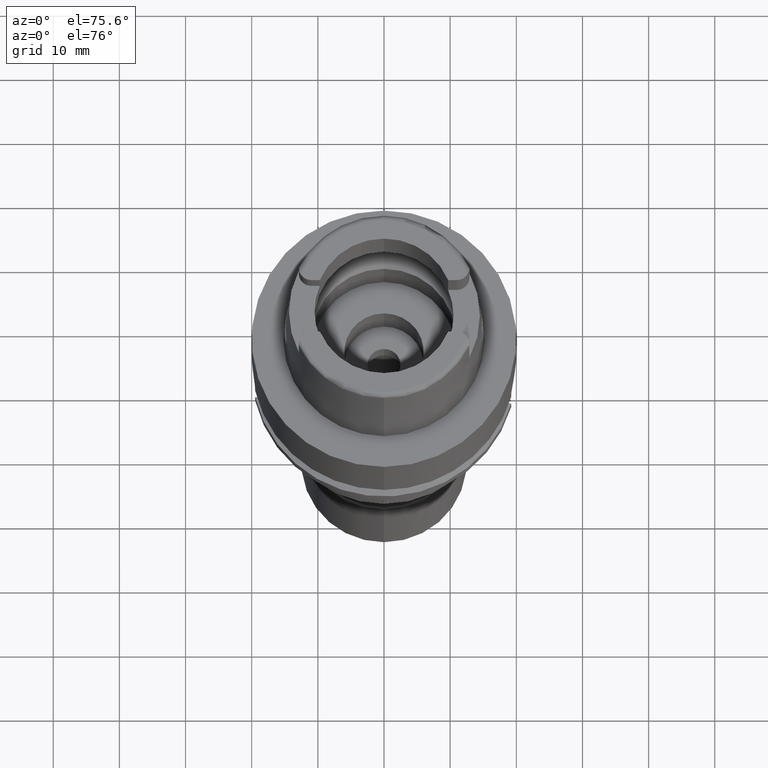
[diagram: clean part render]
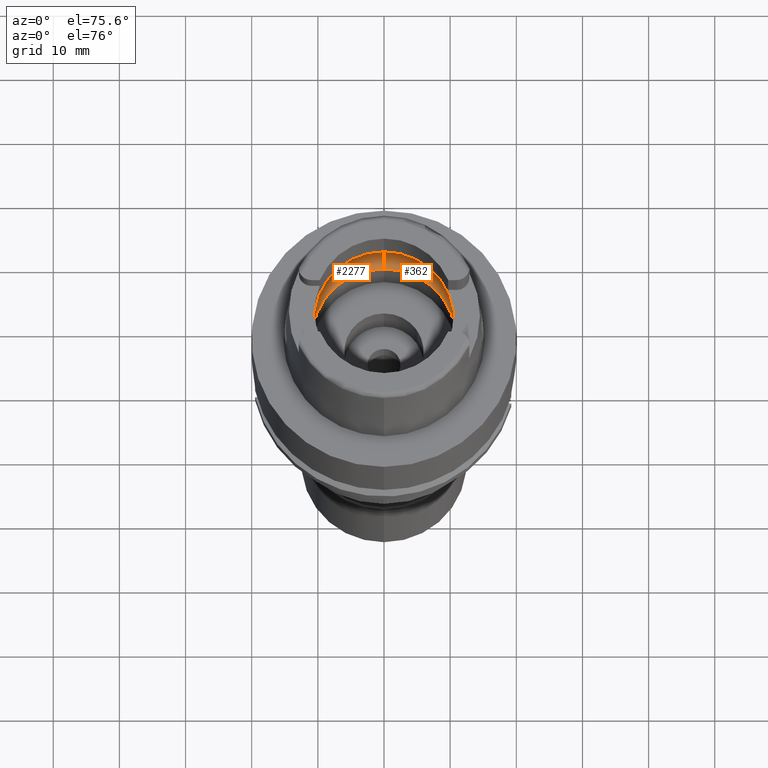
[diagram: same view with one multi-face feature highlighted, each face labeled with its STEP entity id]
A machine part, auxiliary view. The highlighted faces form ONE feature: a constant-radius fillet chain: 2 tangent blend faces with common blend radius 5 mm. The faces share edges in the B-rep.
Their STEP definitions:
[1] entity #2277 (Torus):
#80 = CIRCLE ( 'NONE', #2034, 5.000000000000000888 ) ;
#223 = CARTESIAN_POINT ( 'NONE',  ( -12.70998420979999999, -1.009356917307999923, 3.933312163512999504 ) ) ;
#230 = B_SPLINE_CURVE_WITH_KNOTS ( 'NONE', 3,
 ( #223, #1106, #1026, #2700, #1866, #1080 ),
 .UNSPECIFIED., .F., .F.,
 ( 4, 1, 1, 4 ),
 ( 0.0000000000000000000, 0.3333333333333000081, 0.6666666666667000474, 1.000000000000000000 ),
 .UNSPECIFIED. ) ;
#357 = FACE_OUTER_BOUND ( 'NONE', #923, .T. ) ;
#485 = CARTESIAN_POINT ( 'NONE',  ( 0.0000000000000000000, -7.750000000000000000, 3.933312163512999504 ) ) ;
#581 = ORIENTED_EDGE ( 'NONE', *, *, #1940, .T. ) ;
#597 = VERTEX_POINT ( 'NONE', #4665 ) ;
#615 = CIRCLE ( 'NONE', #2459, 12.75000000000000533 ) ;
#625 = ORIENTED_EDGE ( 'NONE', *, *, #3790, .F. ) ;
#652 = CARTESIAN_POINT ( 'NONE',  ( 0.0000000000000000000, 7.750000000000000000, 3.933312163512999504 ) ) ;
#669 = CARTESIAN_POINT ( 'NONE',  ( -12.73125751627000035, 0.6899582059268000167, 3.796706360378999889 ) ) ;
#802 = CIRCLE ( 'NONE', #4414, 12.75000000000000000 ) ;
#893 = CIRCLE ( 'NONE', #983, 5.000000000000000888 ) ;
#923 = EDGE_LOOP ( 'NONE', ( #4750, #972, #3204, #581, #3233, #625, #2678 ) ) ;
#972 = ORIENTED_EDGE ( 'NONE', *, *, #3335, .F. ) ;
#983 = AXIS2_PLACEMENT_3D ( 'NONE', #485, #3400, #1337 ) ;
#1026 = CARTESIAN_POINT ( 'NONE',  ( -12.73125747192000112, -0.6899593579563000345, 3.796706671708999892 ) ) ;
#1080 = CARTESIAN_POINT ( 'NONE',  ( -12.74455357708000136, 0.0000000000000000000, 3.700000000000000178 ) ) ;
#1106 = CARTESIAN_POINT ( 'NONE',  ( -12.71822604802000001, -0.9055743684054998743, 3.882625440641000125 ) ) ;
#1192 = VERTEX_POINT ( 'NONE', #1965 ) ;
#1260 = CARTESIAN_POINT ( 'NONE',  ( 0.0000000000000000000, 1.272815980657999902E-14, 3.933312163512999504 ) ) ;
#1333 = CARTESIAN_POINT ( 'NONE',  ( 0.0000000000000000000, 1.272815980657999902E-14, 3.933312163512999504 ) ) ;
#1337 = DIRECTION ( 'NONE',  ( 0.0000000000000000000, -0.6299999999999791322, -0.7765951326141738997 ) ) ;
#1439 = CARTESIAN_POINT ( 'NONE',  ( -12.70998420979999999, 1.009356917307999923, 3.933312163512999504 ) ) ;
#1469 = VERTEX_POINT ( 'NONE', #4760 ) ;
#1821 = B_SPLINE_CURVE_WITH_KNOTS ( 'NONE', 3,
 ( #4855, #4440, #5241, #669, #3190, #1439 ),
 .UNSPECIFIED., .F., .F.,
 ( 4, 1, 1, 4 ),
 ( 0.0000000000000000000, 0.3333333333333000081, 0.6666666666667000474, 1.000000000000000000 ),
 .UNSPECIFIED. ) ;
#1866 = CARTESIAN_POINT ( 'NONE',  ( -12.74455357708000136, -0.1164895712142999945, 3.700000000000000178 ) ) ;
#1868 = EDGE_CURVE ( 'NONE', #2104, #1469, #615, .T. ) ;
#1919 = VERTEX_POINT ( 'NONE', #3871 ) ;
#1940 = EDGE_CURVE ( 'NONE', #1192, #1469, #80, .T. ) ;
#1965 = CARTESIAN_POINT ( 'NONE',  ( 0.0000000000000000000, 10.90000000000000036, 0.05033650044222000297 ) ) ;
#2034 = AXIS2_PLACEMENT_3D ( 'NONE', #652, #4782, #3570 ) ;
#2104 = VERTEX_POINT ( 'NONE', #4578 ) ;
#2175 = DIRECTION ( 'NONE',  ( 0.0000000000000000000, 0.0000000000000000000, -1.000000000000000000 ) ) ;
#2198 = EDGE_CURVE ( 'NONE', #3791, #4431, #230, .T. ) ;
#2231 = AXIS2_PLACEMENT_3D ( 'NONE', #2861, #5345, #3673 ) ;
#2277 = ADVANCED_FACE ( 'NONE', ( #357 ), #3702, .F. ) ;
#2459 = AXIS2_PLACEMENT_3D ( 'NONE', #1333, #2175, #4667 ) ;
#2637 = DIRECTION ( 'NONE',  ( 0.0000000000000000000, 0.0000000000000000000, -1.000000000000000000 ) ) ;
#2678 = ORIENTED_EDGE ( 'NONE', *, *, #2198, .F. ) ;
#2700 = CARTESIAN_POINT ( 'NONE',  ( -12.74221292844000075, -0.3492178066839999873, 3.717717104612000334 ) ) ;
#2861 = CARTESIAN_POINT ( 'NONE',  ( 0.0000000000000000000, 1.272815980657999902E-14, 0.05033650044222000297 ) ) ;
#3007 = EDGE_CURVE ( 'NONE', #597, #3791, #802, .T. ) ;
#3190 = CARTESIAN_POINT ( 'NONE',  ( -12.71822608499000040, 0.9055739029613000257, 3.882625213320999968 ) ) ;
#3204 = ORIENTED_EDGE ( 'NONE', *, *, #4335, .F. ) ;
#3233 = ORIENTED_EDGE ( 'NONE', *, *, #1868, .F. ) ;
#3335 = EDGE_CURVE ( 'NONE', #1919, #597, #893, .T. ) ;
#3400 = DIRECTION ( 'NONE',  ( -1.000000000000000000, 0.0000000000000000000, 0.0000000000000000000 ) ) ;
#3527 = CARTESIAN_POINT ( 'NONE',  ( -12.70998420979999999, -1.009356917307999923, 3.933312163512999504 ) ) ;
#3570 = DIRECTION ( 'NONE',  ( 0.0000000000000000000, 0.6299999999999791322, -0.7765951326141738997 ) ) ;
#3673 = DIRECTION ( 'NONE',  ( 0.0000000000000000000, 1.000000000000000000, 0.0000000000000000000 ) ) ;
#3702 = TOROIDAL_SURFACE ( 'NONE', #3878, 7.750000000000000000, 5.000000000000000000 ) ;
#3753 = DIRECTION ( 'NONE',  ( 0.0000000000000000000, -1.000000000000000000, 0.0000000000000000000 ) ) ;
#3790 = EDGE_CURVE ( 'NONE', #4431, #2104, #1821, .T. ) ;
#3791 = VERTEX_POINT ( 'NONE', #3527 ) ;
#3871 = CARTESIAN_POINT ( 'NONE',  ( 0.0000000000000000000, -10.90000000000000036, 0.05033650044222000297 ) ) ;
#3878 = AXIS2_PLACEMENT_3D ( 'NONE', #4525, #5373, #3753 ) ;
#4221 = CARTESIAN_POINT ( 'NONE',  ( -12.74455357708000136, 0.0000000000000000000, 3.700000000000000178 ) ) ;
#4335 = EDGE_CURVE ( 'NONE', #1192, #1919, #4774, .T. ) ;
#4414 = AXIS2_PLACEMENT_3D ( 'NONE', #1260, #2637, #4712 ) ;
#4431 = VERTEX_POINT ( 'NONE', #4221 ) ;
#4440 = CARTESIAN_POINT ( 'NONE',  ( -12.74455357708000136, 0.1164898789877999996, 3.700000000000000178 ) ) ;
#4525 = CARTESIAN_POINT ( 'NONE',  ( 0.0000000000000000000, 1.272815980657999902E-14, 3.933312163512999504 ) ) ;
#4578 = CARTESIAN_POINT ( 'NONE',  ( -12.70998420979999999, 1.009356917307999923, 3.933312163512999504 ) ) ;
#4665 = CARTESIAN_POINT ( 'NONE',  ( 0.0000000000000000000, -12.75000000000000000, 3.933312163512999504 ) ) ;
#4667 = DIRECTION ( 'NONE',  ( -0.9968615066513395462, 0.07916524841634305087, 0.0000000000000000000 ) ) ;
#4712 = DIRECTION ( 'NONE',  ( 0.0000000000000000000, -1.000000000000000000, 0.0000000000000000000 ) ) ;
#4750 = ORIENTED_EDGE ( 'NONE', *, *, #3007, .F. ) ;
#4760 = CARTESIAN_POINT ( 'NONE',  ( 0.0000000000000000000, 12.75000000000000000, 3.933312163512999504 ) ) ;
#4774 = CIRCLE ( 'NONE', #2231, 10.90000000000000036 ) ;
#4782 = DIRECTION ( 'NONE',  ( 1.000000000000000000, 0.0000000000000000000, 0.0000000000000000000 ) ) ;
#4855 = CARTESIAN_POINT ( 'NONE',  ( -12.74455357708000136, 0.0000000000000000000, 3.700000000000000178 ) ) ;
#5241 = CARTESIAN_POINT ( 'NONE',  ( -12.74221290559999886, 0.3492184865941000416, 3.717717267404999859 ) ) ;
#5345 = DIRECTION ( 'NONE',  ( 0.0000000000000000000, 0.0000000000000000000, 1.000000000000000000 ) ) ;
#5373 = DIRECTION ( 'NONE',  ( 0.0000000000000000000, 0.0000000000000000000, -1.000000000000000000 ) ) ;
[2] entity #362 (Torus):
#80 = CIRCLE ( 'NONE', #2034, 5.000000000000000888 ) ;
#127 = CARTESIAN_POINT ( 'NONE',  ( 12.70998420979999999, 1.009356917307000057, 3.933312163512999504 ) ) ;
#330 = VERTEX_POINT ( 'NONE', #127 ) ;
#354 = ORIENTED_EDGE ( 'NONE', *, *, #1339, .F. ) ;
#362 = ADVANCED_FACE ( 'NONE', ( #1127 ), #3275, .F. ) ;
#485 = CARTESIAN_POINT ( 'NONE',  ( 0.0000000000000000000, -7.750000000000000000, 3.933312163512999504 ) ) ;
#524 = ORIENTED_EDGE ( 'NONE', *, *, #1940, .F. ) ;
#538 = EDGE_CURVE ( 'NONE', #1469, #330, #1001, .T. ) ;
#563 = AXIS2_PLACEMENT_3D ( 'NONE', #2281, #2650, #566 ) ;
#566 = DIRECTION ( 'NONE',  ( 0.9968615066513395462, -0.07916524841634305087, 0.0000000000000000000 ) ) ;
#597 = VERTEX_POINT ( 'NONE', #4665 ) ;
#652 = CARTESIAN_POINT ( 'NONE',  ( 0.0000000000000000000, 7.750000000000000000, 3.933312163512999504 ) ) ;
#691 = EDGE_CURVE ( 'NONE', #4708, #597, #2927, .T. ) ;
#840 = ORIENTED_EDGE ( 'NONE', *, *, #538, .F. ) ;
#848 = CARTESIAN_POINT ( 'NONE',  ( 0.0000000000000000000, 1.272815980657999902E-14, 0.05033650044222000297 ) ) ;
#893 = CIRCLE ( 'NONE', #983, 5.000000000000000888 ) ;
#933 = CARTESIAN_POINT ( 'NONE',  ( 12.71822610548000121, 0.9055736448555999907, 3.882625087264000019 ) ) ;
#983 = AXIS2_PLACEMENT_3D ( 'NONE', #485, #3400, #1337 ) ;
#1001 = CIRCLE ( 'NONE', #1168, 12.75000000000000000 ) ;
#1016 = CARTESIAN_POINT ( 'NONE',  ( 12.71822602740000185, -0.9055746280688999894, 3.882625567459000226 ) ) ;
#1127 = FACE_OUTER_BOUND ( 'NONE', #3693, .T. ) ;
#1168 = AXIS2_PLACEMENT_3D ( 'NONE', #5330, #1641, #4995 ) ;
#1192 = VERTEX_POINT ( 'NONE', #1965 ) ;
#1337 = DIRECTION ( 'NONE',  ( 0.0000000000000000000, -0.6299999999999791322, -0.7765951326141738997 ) ) ;
#1339 = EDGE_CURVE ( 'NONE', #330, #3035, #4312, .T. ) ;
#1469 = VERTEX_POINT ( 'NONE', #4760 ) ;
#1473 = DIRECTION ( 'NONE',  ( 0.0000000000000000000, 0.0000000000000000000, -1.000000000000000000 ) ) ;
#1595 = CARTESIAN_POINT ( 'NONE',  ( 12.70998420979999999, -1.009356917307999923, 3.933312163512999504 ) ) ;
#1641 = DIRECTION ( 'NONE',  ( 0.0000000000000000000, 0.0000000000000000000, -1.000000000000000000 ) ) ;
#1862 = CARTESIAN_POINT ( 'NONE',  ( 0.0000000000000000000, 1.272815980657999902E-14, 3.933312163512999504 ) ) ;
#1888 = AXIS2_PLACEMENT_3D ( 'NONE', #848, #3376, #5063 ) ;
#1919 = VERTEX_POINT ( 'NONE', #3871 ) ;
#1940 = EDGE_CURVE ( 'NONE', #1192, #1469, #80, .T. ) ;
#1965 = CARTESIAN_POINT ( 'NONE',  ( 0.0000000000000000000, 10.90000000000000036, 0.05033650044222000297 ) ) ;
#2034 = AXIS2_PLACEMENT_3D ( 'NONE', #652, #4782, #3570 ) ;
#2060 = CIRCLE ( 'NONE', #1888, 10.90000000000000036 ) ;
#2281 = CARTESIAN_POINT ( 'NONE',  ( 0.0000000000000000000, 1.272815980657999902E-14, 3.933312163512999504 ) ) ;
#2289 = ORIENTED_EDGE ( 'NONE', *, *, #3335, .T. ) ;
#2551 = CARTESIAN_POINT ( 'NONE',  ( 12.74455357708000136, 0.1164895916260999947, 3.700000000000000178 ) ) ;
#2650 = DIRECTION ( 'NONE',  ( 0.0000000000000000000, 0.0000000000000000000, -1.000000000000000000 ) ) ;
#2751 = AXIS2_PLACEMENT_3D ( 'NONE', #1862, #1473, #2845 ) ;
#2768 = CARTESIAN_POINT ( 'NONE',  ( 12.74455357708000136, -0.1164898603219999829, 3.700000000000000178 ) ) ;
#2845 = DIRECTION ( 'NONE',  ( 0.0000000000000000000, -1.000000000000000000, 0.0000000000000000000 ) ) ;
#2927 = CIRCLE ( 'NONE', #563, 12.75000000000000533 ) ;
#3035 = VERTEX_POINT ( 'NONE', #3860 ) ;
#3045 = CARTESIAN_POINT ( 'NONE',  ( 12.74221291712999893, 0.3492178183419999971, 3.717717179960999818 ) ) ;
#3072 = CARTESIAN_POINT ( 'NONE',  ( 12.74455357708000136, 0.0000000000000000000, 3.700000000000000178 ) ) ;
#3179 = CARTESIAN_POINT ( 'NONE',  ( 12.73125744058999942, -0.6899600012526999615, 3.796706888550000158 ) ) ;
#3275 = TOROIDAL_SURFACE ( 'NONE', #2751, 7.750000000000000000, 5.000000000000000000 ) ;
#3335 = EDGE_CURVE ( 'NONE', #1919, #597, #893, .T. ) ;
#3376 = DIRECTION ( 'NONE',  ( 0.0000000000000000000, 0.0000000000000000000, 1.000000000000000000 ) ) ;
#3400 = DIRECTION ( 'NONE',  ( -1.000000000000000000, 0.0000000000000000000, 0.0000000000000000000 ) ) ;
#3463 = CARTESIAN_POINT ( 'NONE',  ( 12.70998420979999999, 1.009356917307000057, 3.933312163512999504 ) ) ;
#3570 = DIRECTION ( 'NONE',  ( 0.0000000000000000000, 0.6299999999999791322, -0.7765951326141738997 ) ) ;
#3690 = ORIENTED_EDGE ( 'NONE', *, *, #691, .F. ) ;
#3693 = EDGE_LOOP ( 'NONE', ( #354, #840, #524, #4644, #2289, #3690, #5438 ) ) ;
#3842 = B_SPLINE_CURVE_WITH_KNOTS ( 'NONE', 3,
 ( #3072, #2768, #4403, #3179, #1016, #4841 ),
 .UNSPECIFIED., .F., .F.,
 ( 4, 1, 1, 4 ),
 ( 0.0000000000000000000, 0.3333333333333000081, 0.6666666666667000474, 1.000000000000000000 ),
 .UNSPECIFIED. ) ;
#3855 = CARTESIAN_POINT ( 'NONE',  ( 12.73125754741000115, 0.6899575664910999606, 3.796706144840999997 ) ) ;
#3860 = CARTESIAN_POINT ( 'NONE',  ( 12.74455357708000136, 0.0000000000000000000, 3.700000000000000178 ) ) ;
#3871 = CARTESIAN_POINT ( 'NONE',  ( 0.0000000000000000000, -10.90000000000000036, 0.05033650044222000297 ) ) ;
#4312 = B_SPLINE_CURVE_WITH_KNOTS ( 'NONE', 3,
 ( #3463, #933, #3855, #3045, #2551, #4735 ),
 .UNSPECIFIED., .F., .F.,
 ( 4, 1, 1, 4 ),
 ( 0.0000000000000000000, 0.3333333333333000081, 0.6666666666667000474, 1.000000000000000000 ),
 .UNSPECIFIED. ) ;
#4403 = CARTESIAN_POINT ( 'NONE',  ( 12.74221291684999890, -0.3492184789958999724, 3.717717192588000152 ) ) ;
#4644 = ORIENTED_EDGE ( 'NONE', *, *, #4946, .F. ) ;
#4665 = CARTESIAN_POINT ( 'NONE',  ( 0.0000000000000000000, -12.75000000000000000, 3.933312163512999504 ) ) ;
#4708 = VERTEX_POINT ( 'NONE', #1595 ) ;
#4735 = CARTESIAN_POINT ( 'NONE',  ( 12.74455357708000136, 0.0000000000000000000, 3.700000000000000178 ) ) ;
#4760 = CARTESIAN_POINT ( 'NONE',  ( 0.0000000000000000000, 12.75000000000000000, 3.933312163512999504 ) ) ;
#4782 = DIRECTION ( 'NONE',  ( 1.000000000000000000, 0.0000000000000000000, 0.0000000000000000000 ) ) ;
#4841 = CARTESIAN_POINT ( 'NONE',  ( 12.70998420979999999, -1.009356917307999923, 3.933312163512999504 ) ) ;
#4946 = EDGE_CURVE ( 'NONE', #1919, #1192, #2060, .T. ) ;
#4995 = DIRECTION ( 'NONE',  ( 0.0000000000000000000, 1.000000000000000000, 0.0000000000000000000 ) ) ;
#5016 = EDGE_CURVE ( 'NONE', #3035, #4708, #3842, .T. ) ;
#5063 = DIRECTION ( 'NONE',  ( 0.0000000000000000000, -1.000000000000000000, 0.0000000000000000000 ) ) ;
#5330 = CARTESIAN_POINT ( 'NONE',  ( 0.0000000000000000000, 1.272815980657999902E-14, 3.933312163512999504 ) ) ;
#5438 = ORIENTED_EDGE ( 'NONE', *, *, #5016, .F. ) ;